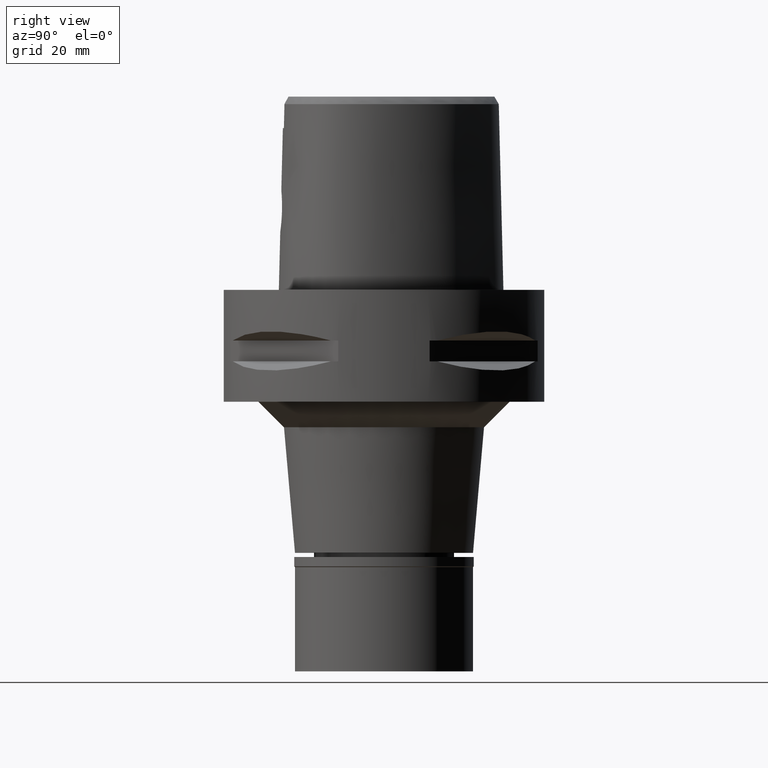
[diagram: clean part render]
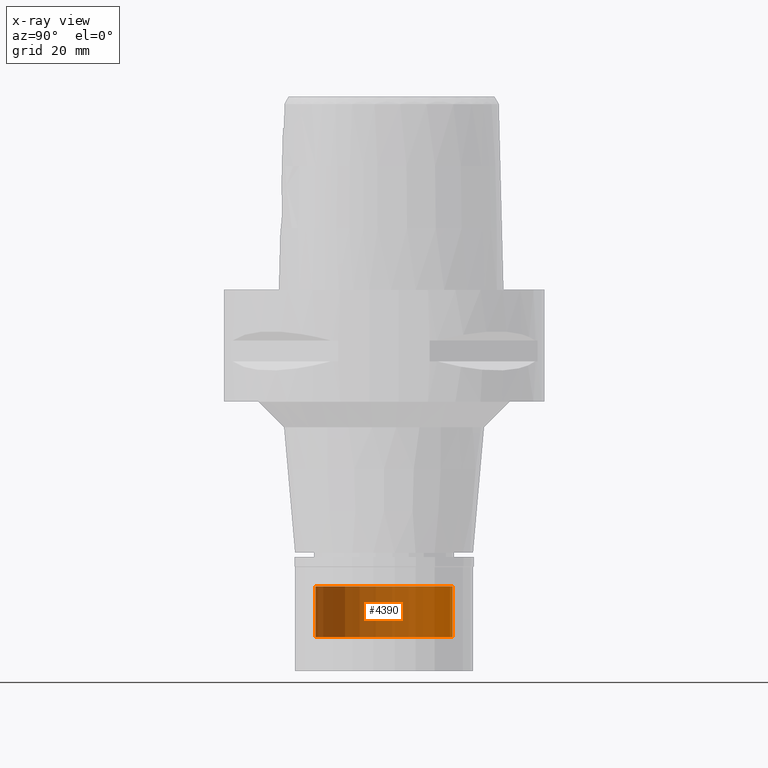
[diagram: x-ray — body ghosted, one internal face saturated and labeled with its STEP entity id]
A machine part, right view, then the same camera in x-ray: the body is ghosted and one INTERNAL B-rep face — a face not visible from any outside direction — is saturated and labeled: STEP entity #4390.
In plain terms, the highlighted cylindrical surface (partial cylindrical patch) has radius 13.5 mm, axis along (0, 0, -1).
Its self-contained STEP definition (entity closure, byte-faithful):
#80 = VERTEX_POINT ( 'NONE', #3384 ) ;
#217 = DIRECTION ( 'NONE',  ( 0.0000000000000000000, -1.000000000000000000, 0.0000000000000000000 ) ) ;
#333 = ORIENTED_EDGE ( 'NONE', *, *, #3889, .T. ) ;
#422 = LINE ( 'NONE', #2604, #2391 ) ;
#592 = CYLINDRICAL_SURFACE ( 'NONE', #3821, 13.50000000000000000 ) ;
#722 = CARTESIAN_POINT ( 'NONE',  ( 0.0000000000000000000, 1.266468487337999962E-14, -58.29999999999999716 ) ) ;
#782 = LINE ( 'NONE', #1169, #1606 ) ;
#1004 = FACE_OUTER_BOUND ( 'NONE', #2147, .T. ) ;
#1137 = ORIENTED_EDGE ( 'NONE', *, *, #2707, .T. ) ;
#1158 = DIRECTION ( 'NONE',  ( 0.0000000000000000000, 0.0000000000000000000, -1.000000000000000000 ) ) ;
#1169 = CARTESIAN_POINT ( 'NONE',  ( 0.0000000000000000000, 13.50000000000000000, -58.29999999999999716 ) ) ;
#1242 = DIRECTION ( 'NONE',  ( 0.0000000000000000000, 1.000000000000000000, 0.0000000000000000000 ) ) ;
#1530 = EDGE_CURVE ( 'NONE', #3337, #2056, #3295, .T. ) ;
#1532 = CARTESIAN_POINT ( 'NONE',  ( 0.0000000000000000000, -13.50000000000000000, -68.29999999999999716 ) ) ;
#1606 = VECTOR ( 'NONE', #3837, 1000.000000000000000 ) ;
#1634 = DIRECTION ( 'NONE',  ( 0.0000000000000000000, 0.0000000000000000000, 1.000000000000000000 ) ) ;
#2056 = VERTEX_POINT ( 'NONE', #1532 ) ;
#2147 = EDGE_LOOP ( 'NONE', ( #4495, #4452, #1137, #333 ) ) ;
#2162 = CIRCLE ( 'NONE', #4515, 13.50000000000000000 ) ;
#2391 = VECTOR ( 'NONE', #4565, 1000.000000000000000 ) ;
#2562 = CARTESIAN_POINT ( 'NONE',  ( 0.0000000000000000000, 13.50000000000000000, -68.29999999999999716 ) ) ;
#2604 = CARTESIAN_POINT ( 'NONE',  ( 0.0000000000000000000, -13.50000000000000000, -58.29999999999999716 ) ) ;
#2648 = DIRECTION ( 'NONE',  ( 0.0000000000000000000, -1.000000000000000000, 0.0000000000000000000 ) ) ;
#2686 = CARTESIAN_POINT ( 'NONE',  ( 0.0000000000000000000, 1.266468487337999962E-14, -68.29999999999999716 ) ) ;
#2707 = EDGE_CURVE ( 'NONE', #80, #4286, #2162, .T. ) ;
#2745 = EDGE_CURVE ( 'NONE', #80, #2056, #422, .T. ) ;
#3295 = CIRCLE ( 'NONE', #3601, 13.50000000000000000 ) ;
#3337 = VERTEX_POINT ( 'NONE', #2562 ) ;
#3384 = CARTESIAN_POINT ( 'NONE',  ( 0.0000000000000000000, -13.50000000000000000, -58.29999999999999716 ) ) ;
#3594 = DIRECTION ( 'NONE',  ( 0.0000000000000000000, 0.0000000000000000000, -1.000000000000000000 ) ) ;
#3601 = AXIS2_PLACEMENT_3D ( 'NONE', #2686, #1634, #1242 ) ;
#3821 = AXIS2_PLACEMENT_3D ( 'NONE', #4340, #3594, #217 ) ;
#3837 = DIRECTION ( 'NONE',  ( 0.0000000000000000000, 0.0000000000000000000, -1.000000000000000000 ) ) ;
#3889 = EDGE_CURVE ( 'NONE', #4286, #3337, #782, .T. ) ;
#4019 = CARTESIAN_POINT ( 'NONE',  ( 0.0000000000000000000, 13.50000000000000000, -58.29999999999999716 ) ) ;
#4286 = VERTEX_POINT ( 'NONE', #4019 ) ;
#4340 = CARTESIAN_POINT ( 'NONE',  ( 0.0000000000000000000, 1.266468487337999962E-14, 3.415000000000000036 ) ) ;
#4390 = ADVANCED_FACE ( 'NONE', ( #1004 ), #592, .T. ) ;
#4452 = ORIENTED_EDGE ( 'NONE', *, *, #2745, .F. ) ;
#4495 = ORIENTED_EDGE ( 'NONE', *, *, #1530, .T. ) ;
#4515 = AXIS2_PLACEMENT_3D ( 'NONE', #722, #1158, #2648 ) ;
#4565 = DIRECTION ( 'NONE',  ( 0.0000000000000000000, 0.0000000000000000000, -1.000000000000000000 ) ) ;